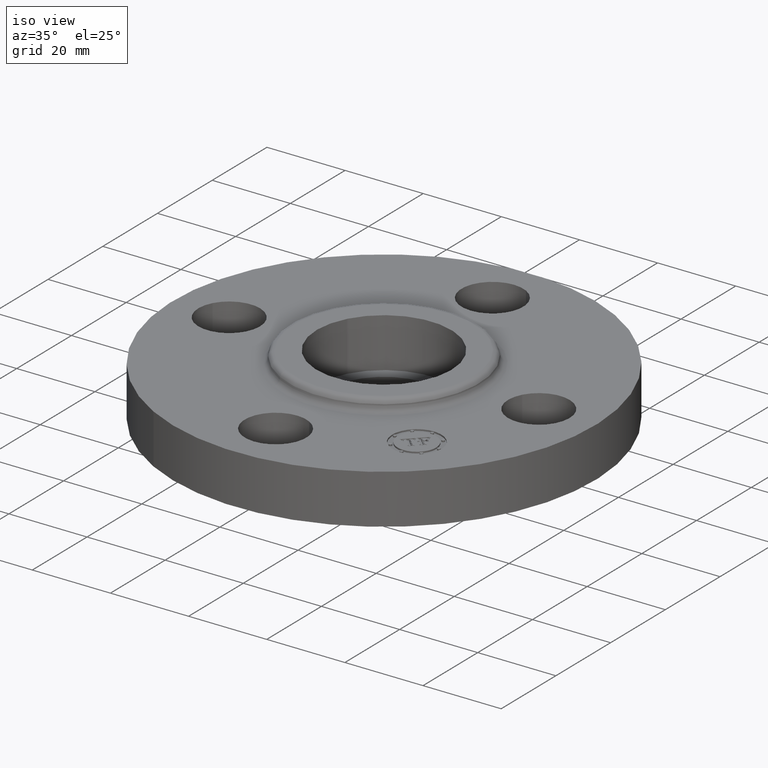
[diagram: clean part render]
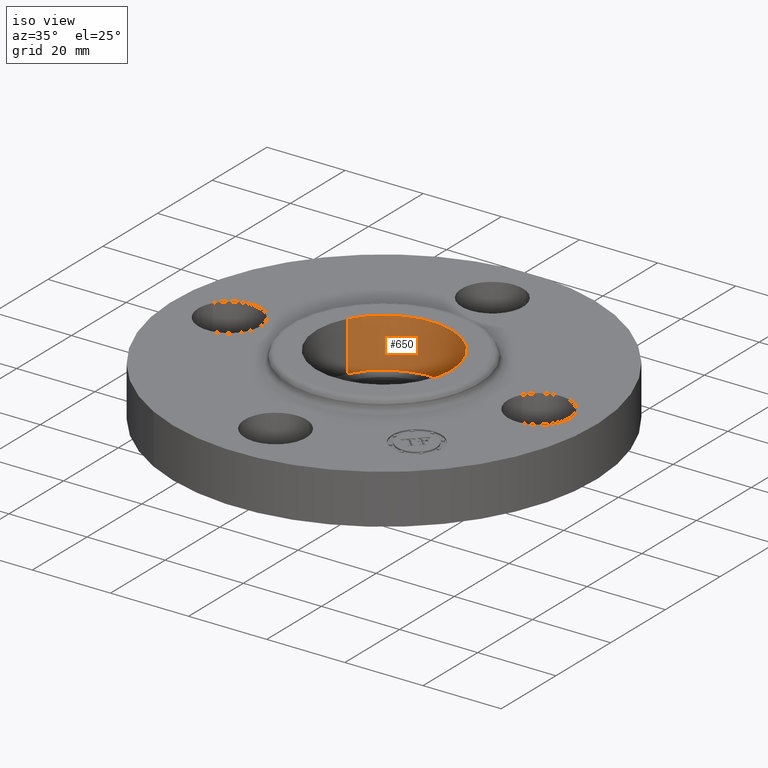
[diagram: same view with one face highlighted and labeled with its STEP entity id]
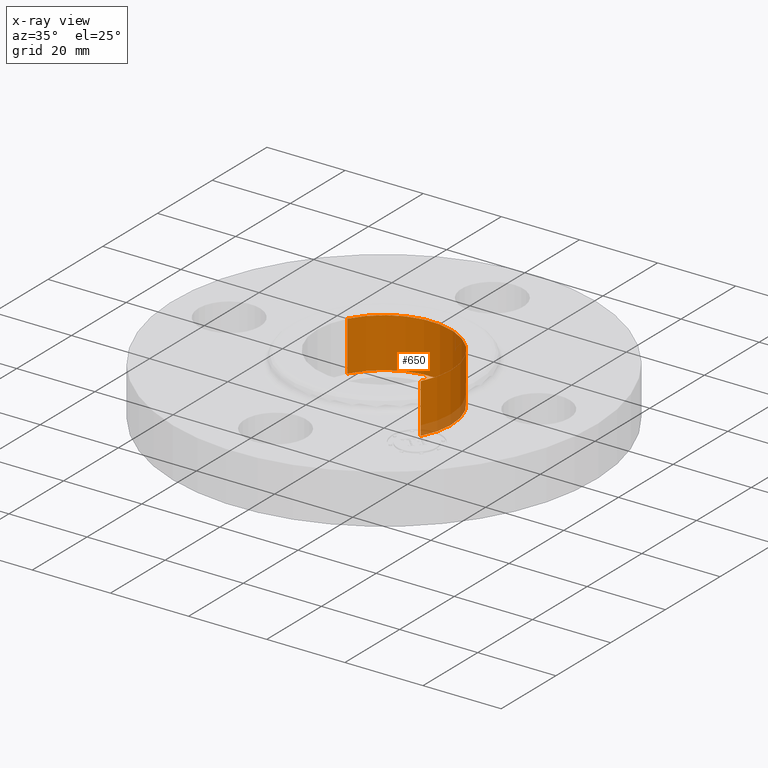
[diagram: x-ray of the same camera — body ghosted, the highlighted face saturated]
A machine part, iso view. The second image highlights one B-rep face of the part: STEP entity #650.
The next image is the same camera in x-ray: the body ghosted, the highlighted face saturated — about 6% of this face is hidden behind the body in this view.
In plain terms, the highlighted cylindrical surface (partial cylindrical patch) has radius 17.272 mm, axis along (0, 0, -1).
Its self-contained STEP definition (entity closure, byte-faithful):
#42=AXIS2_PLACEMENT_3D('Circle Axis2P3D',#40,#41,$) ;
#440=AXIS2_PLACEMENT_3D('Circle Axis2P3D',#438,#439,$) ;
#632=AXIS2_PLACEMENT_3D('Cylinder Axis2P3D',#629,#630,#631) ;
#40=CARTESIAN_POINT('Axis2P3D Location',(0.,-6.99353086378E-017,0.12)) ;
#44=CARTESIAN_POINT('Vertex',(-0.596756142088,0.326009366252,0.12)) ;
#46=CARTESIAN_POINT('Vertex',(0.596756142088,-0.326009366252,0.12)) ;
#438=CARTESIAN_POINT('Axis2P3D Location',(-3.49676543189E-017,-1.39870617276E-016,0.620000000002)) ;
#442=CARTESIAN_POINT('Vertex',(-0.596756142088,0.326009366252,0.620000000002)) ;
#444=CARTESIAN_POINT('Vertex',(0.596756142088,-0.326009366252,0.620000000002)) ;
#629=CARTESIAN_POINT('Axis2P3D Location',(0.,-6.99353086378E-017,0.616062992128)) ;
#634=CARTESIAN_POINT('Line Origine',(-0.596756142088,0.326009366252,0.370000000001)) ;
#639=CARTESIAN_POINT('Line Origine',(0.596756142088,-0.326009366252,0.370000000001)) ;
#41=DIRECTION('Axis2P3D Direction',(0.,0.,-0.0393700787402)) ;
#439=DIRECTION('Axis2P3D Direction',(0.,0.,-0.0393700787402)) ;
#630=DIRECTION('Axis2P3D Direction',(0.,0.,-0.0393700787402)) ;
#631=DIRECTION('Axis2P3D XDirection',(0.0345504945626,-0.0188750212049,0.)) ;
#635=DIRECTION('Vector Direction',(0.,0.,-0.0393700787402)) ;
#640=DIRECTION('Vector Direction',(0.,0.,-0.0393700787402)) ;
#636=VECTOR('Line Direction',#635,0.0393700787402) ;
#641=VECTOR('Line Direction',#640,0.0393700787402) ;
#645=ORIENTED_EDGE('',*,*,#446,.F.) ;
#646=ORIENTED_EDGE('',*,*,#638,.F.) ;
#647=ORIENTED_EDGE('',*,*,#48,.T.) ;
#648=ORIENTED_EDGE('',*,*,#643,.T.) ;
#650=ADVANCED_FACE('PartBody',(#649),#633,.F.) ;
#43=CIRCLE('generated circle',#42,0.680000000003) ;
#441=CIRCLE('generated circle',#440,0.680000000003) ;
#633=CYLINDRICAL_SURFACE('generated cylinder',#632,0.680000000003) ;
#48=EDGE_CURVE('',#45,#47,#43,.T.) ;
#446=EDGE_CURVE('',#443,#445,#441,.T.) ;
#638=EDGE_CURVE('',#45,#443,#637,.F.) ;
#643=EDGE_CURVE('',#47,#445,#642,.F.) ;
#644=EDGE_LOOP('',(#645,#646,#647,#648)) ;
#649=FACE_OUTER_BOUND('',#644,.T.) ;
#637=LINE('Line',#634,#636) ;
#642=LINE('Line',#639,#641) ;
#45=VERTEX_POINT('',#44) ;
#47=VERTEX_POINT('',#46) ;
#443=VERTEX_POINT('',#442) ;
#445=VERTEX_POINT('',#444) ;